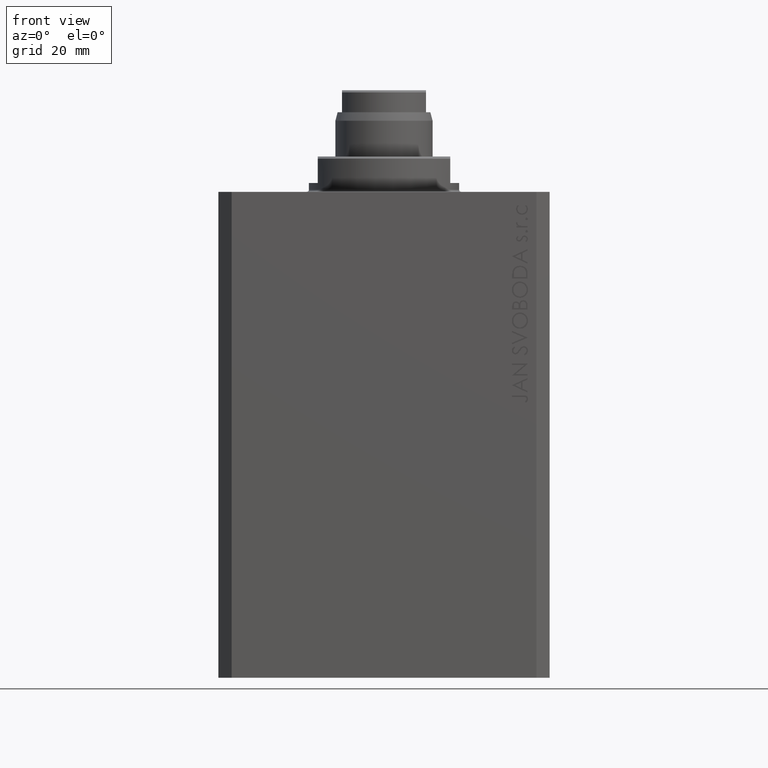
[diagram: clean part render]
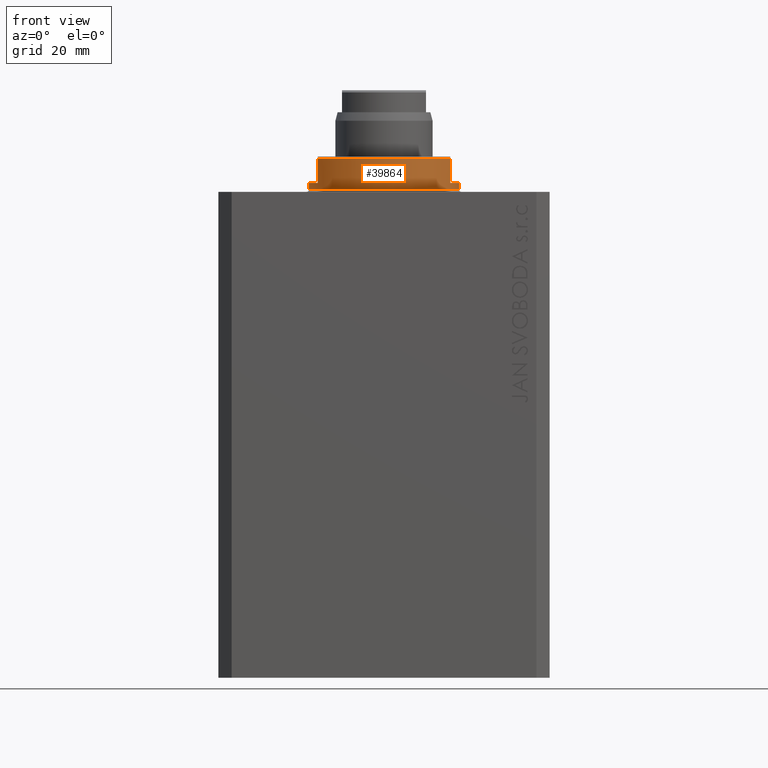
[diagram: same view with one face highlighted and labeled with its STEP entity id]
A machine part, front view. The second image highlights one B-rep face of the part: STEP entity #39864.
In plain terms, the highlighted cylindrical surface (partial cylindrical patch) has radius 17 mm, axis along (0, 0, -1).
Its self-contained STEP definition (entity closure, byte-faithful):
#557 = DIRECTION ( 'NONE',  ( -0.000000000000000000, -0.000000000000000000, 1.000000000000000000 ) ) ;
#761 = LINE ( 'NONE', #5015, #26871 ) ;
#2436 = CARTESIAN_POINT ( 'NONE',  ( -15.00000000000000000, -8.000000000000001776, -7.499999999999993783 ) ) ;
#3072 = AXIS2_PLACEMENT_3D ( 'NONE', #7888, #22319, #24932 ) ;
#4094 = DIRECTION ( 'NONE',  ( -0.000000000000000000, -0.000000000000000000, -1.000000000000000000 ) ) ;
#5015 = CARTESIAN_POINT ( 'NONE',  ( -17.00000000000000000, 2.081899558550500280E-15, -8.000000000000000000 ) ) ;
#5019 = DIRECTION ( 'NONE',  ( 1.000000000000000000, 0.000000000000000000, 0.000000000000000000 ) ) ;
#5184 = EDGE_CURVE ( 'NONE', #12681, #44102, #26577, .T. ) ;
#6366 = DIRECTION ( 'NONE',  ( 0.000000000000000000, 0.000000000000000000, -1.000000000000000000 ) ) ;
#6492 = DIRECTION ( 'NONE',  ( 0.000000000000000000, 0.000000000000000000, -1.000000000000000000 ) ) ;
#7724 = VERTEX_POINT ( 'NONE', #2436 ) ;
#7865 = CARTESIAN_POINT ( 'NONE',  ( 0.000000000000000000, 0.000000000000000000, -0.5000000000000004441 ) ) ;
#7888 = CARTESIAN_POINT ( 'NONE',  ( 0.000000000000000000, 0.000000000000000000, -8.000000000000000000 ) ) ;
#7896 = ORIENTED_EDGE ( 'NONE', *, *, #11799, .T. ) ;
#8559 = DIRECTION ( 'NONE',  ( -0.000000000000000000, -0.000000000000000000, 1.000000000000000000 ) ) ;
#8999 = AXIS2_PLACEMENT_3D ( 'NONE', #7865, #4094, #5019 ) ;
#11129 = ORIENTED_EDGE ( 'NONE', *, *, #36307, .F. ) ;
#11799 = EDGE_CURVE ( 'NONE', #44102, #14118, #15778, .T. ) ;
#12341 = ORIENTED_EDGE ( 'NONE', *, *, #30411, .T. ) ;
#12427 = VECTOR ( 'NONE', #6492, 1000.000000000000000 ) ;
#12681 = VERTEX_POINT ( 'NONE', #38280 ) ;
#12794 = CIRCLE ( 'NONE', #19592, 17.00000000000000000 ) ;
#13115 = EDGE_LOOP ( 'NONE', ( #31275, #22758, #36928, #12341, #29591, #11129, #41621, #7896 ) ) ;
#14118 = VERTEX_POINT ( 'NONE', #32402 ) ;
#14261 = AXIS2_PLACEMENT_3D ( 'NONE', #42568, #6366, #46563 ) ;
#15778 = CIRCLE ( 'NONE', #8999, 17.00000000000000000 ) ;
#17736 = VECTOR ( 'NONE', #39232, 1000.000000000000000 ) ;
#19227 = CARTESIAN_POINT ( 'NONE',  ( 14.99999999999999645, -8.000000000000003553, -2.000000000000000000 ) ) ;
#19592 = AXIS2_PLACEMENT_3D ( 'NONE', #19629, #30750, #44220 ) ;
#19629 = CARTESIAN_POINT ( 'NONE',  ( 0.000000000000000000, 0.000000000000000000, -2.000000000000000000 ) ) ;
#21387 = FACE_OUTER_BOUND ( 'NONE', #13115, .T. ) ;
#21964 = EDGE_CURVE ( 'NONE', #27717, #40088, #34672, .T. ) ;
#22319 = DIRECTION ( 'NONE',  ( -0.000000000000000000, -0.000000000000000000, 1.000000000000000000 ) ) ;
#22758 = ORIENTED_EDGE ( 'NONE', *, *, #42839, .F. ) ;
#23127 = VERTEX_POINT ( 'NONE', #26348 ) ;
#23261 = CARTESIAN_POINT ( 'NONE',  ( 17.00000000000000000, 0.000000000000000000, -8.000000000000000000 ) ) ;
#24538 = CARTESIAN_POINT ( 'NONE',  ( 17.00000000000000000, 0.000000000000000000, -0.5000000000000004441 ) ) ;
#24932 = DIRECTION ( 'NONE',  ( 1.000000000000000000, 0.000000000000000000, 0.000000000000000000 ) ) ;
#25299 = AXIS2_PLACEMENT_3D ( 'NONE', #38022, #38258, #42040 ) ;
#25693 = CIRCLE ( 'NONE', #14261, 17.00000000000000000 ) ;
#26348 = CARTESIAN_POINT ( 'NONE',  ( -17.00000000000000000, 2.081899558550500280E-15, -2.000000000000000000 ) ) ;
#26577 = LINE ( 'NONE', #23261, #41337 ) ;
#26871 = VECTOR ( 'NONE', #8559, 1000.000000000000000 ) ;
#27717 = VERTEX_POINT ( 'NONE', #19227 ) ;
#29591 = ORIENTED_EDGE ( 'NONE', *, *, #21964, .F. ) ;
#30237 = EDGE_CURVE ( 'NONE', #43712, #7724, #35910, .T. ) ;
#30411 = EDGE_CURVE ( 'NONE', #7724, #40088, #30621, .T. ) ;
#30621 = CIRCLE ( 'NONE', #25299, 17.00000000000000000 ) ;
#30750 = DIRECTION ( 'NONE',  ( 0.000000000000000000, 0.000000000000000000, -1.000000000000000000 ) ) ;
#31275 = ORIENTED_EDGE ( 'NONE', *, *, #31678, .F. ) ;
#31303 = CARTESIAN_POINT ( 'NONE',  ( 15.00000000000000000, -8.000000000000001776, -7.499999999999992895 ) ) ;
#31678 = EDGE_CURVE ( 'NONE', #23127, #14118, #761, .T. ) ;
#32402 = CARTESIAN_POINT ( 'NONE',  ( -17.00000000000000000, 2.081899558550500280E-15, -0.5000000000000004441 ) ) ;
#34672 = LINE ( 'NONE', #46230, #12427 ) ;
#35814 = CYLINDRICAL_SURFACE ( 'NONE', #3072, 17.00000000000000000 ) ;
#35910 = LINE ( 'NONE', #42780, #17736 ) ;
#36307 = EDGE_CURVE ( 'NONE', #12681, #27717, #12794, .T. ) ;
#36928 = ORIENTED_EDGE ( 'NONE', *, *, #30237, .T. ) ;
#38022 = CARTESIAN_POINT ( 'NONE',  ( 0.000000000000000000, 0.000000000000000000, -7.499999999999992895 ) ) ;
#38258 = DIRECTION ( 'NONE',  ( 0.000000000000000000, 0.000000000000000000, 1.000000000000000000 ) ) ;
#38280 = CARTESIAN_POINT ( 'NONE',  ( 17.00000000000000000, 0.000000000000000000, -2.000000000000000000 ) ) ;
#39232 = DIRECTION ( 'NONE',  ( 0.000000000000000000, 0.000000000000000000, -1.000000000000000000 ) ) ;
#39864 = ADVANCED_FACE ( 'NONE', ( #21387 ), #35814, .T. ) ;
#40088 = VERTEX_POINT ( 'NONE', #31303 ) ;
#41337 = VECTOR ( 'NONE', #557, 1000.000000000000000 ) ;
#41621 = ORIENTED_EDGE ( 'NONE', *, *, #5184, .T. ) ;
#42040 = DIRECTION ( 'NONE',  ( -1.000000000000000000, 0.000000000000000000, 0.000000000000000000 ) ) ;
#42172 = CARTESIAN_POINT ( 'NONE',  ( -14.99999999999999645, -8.000000000000003553, -2.000000000000000000 ) ) ;
#42568 = CARTESIAN_POINT ( 'NONE',  ( 0.000000000000000000, 0.000000000000000000, -2.000000000000000000 ) ) ;
#42780 = CARTESIAN_POINT ( 'NONE',  ( -15.00000000000000000, -8.000000000000001776, -8.000000000000000000 ) ) ;
#42839 = EDGE_CURVE ( 'NONE', #43712, #23127, #25693, .T. ) ;
#43712 = VERTEX_POINT ( 'NONE', #42172 ) ;
#44102 = VERTEX_POINT ( 'NONE', #24538 ) ;
#44220 = DIRECTION ( 'NONE',  ( -1.000000000000000000, 0.000000000000000000, 0.000000000000000000 ) ) ;
#46230 = CARTESIAN_POINT ( 'NONE',  ( 15.00000000000000000, -8.000000000000001776, -8.000000000000000000 ) ) ;
#46563 = DIRECTION ( 'NONE',  ( -1.000000000000000000, 0.000000000000000000, 0.000000000000000000 ) ) ;